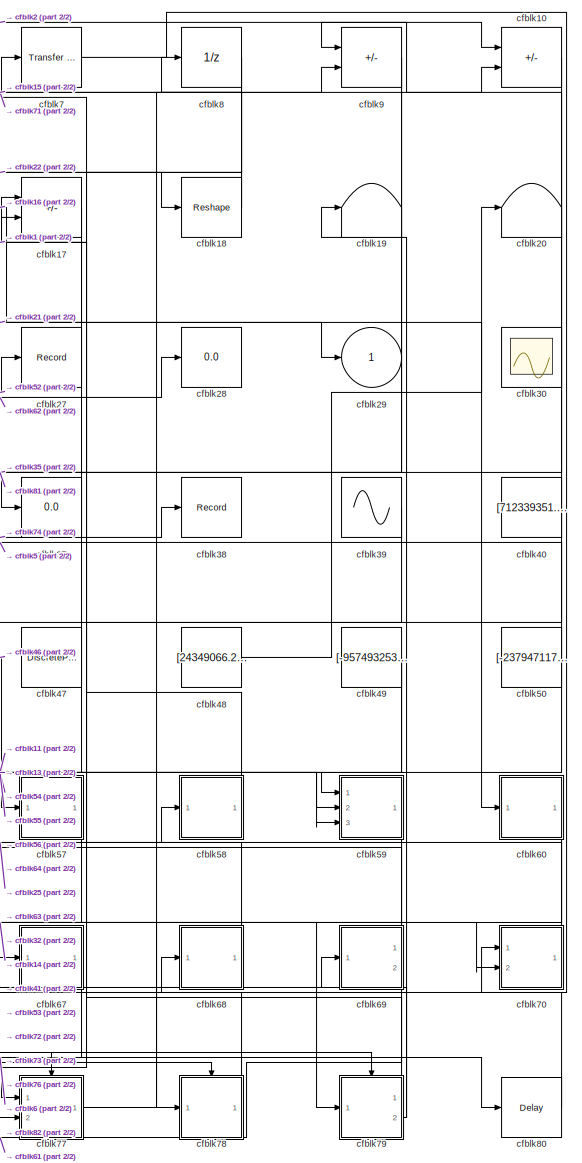
[diagram: root canvas - part 1/2, right side, full height]
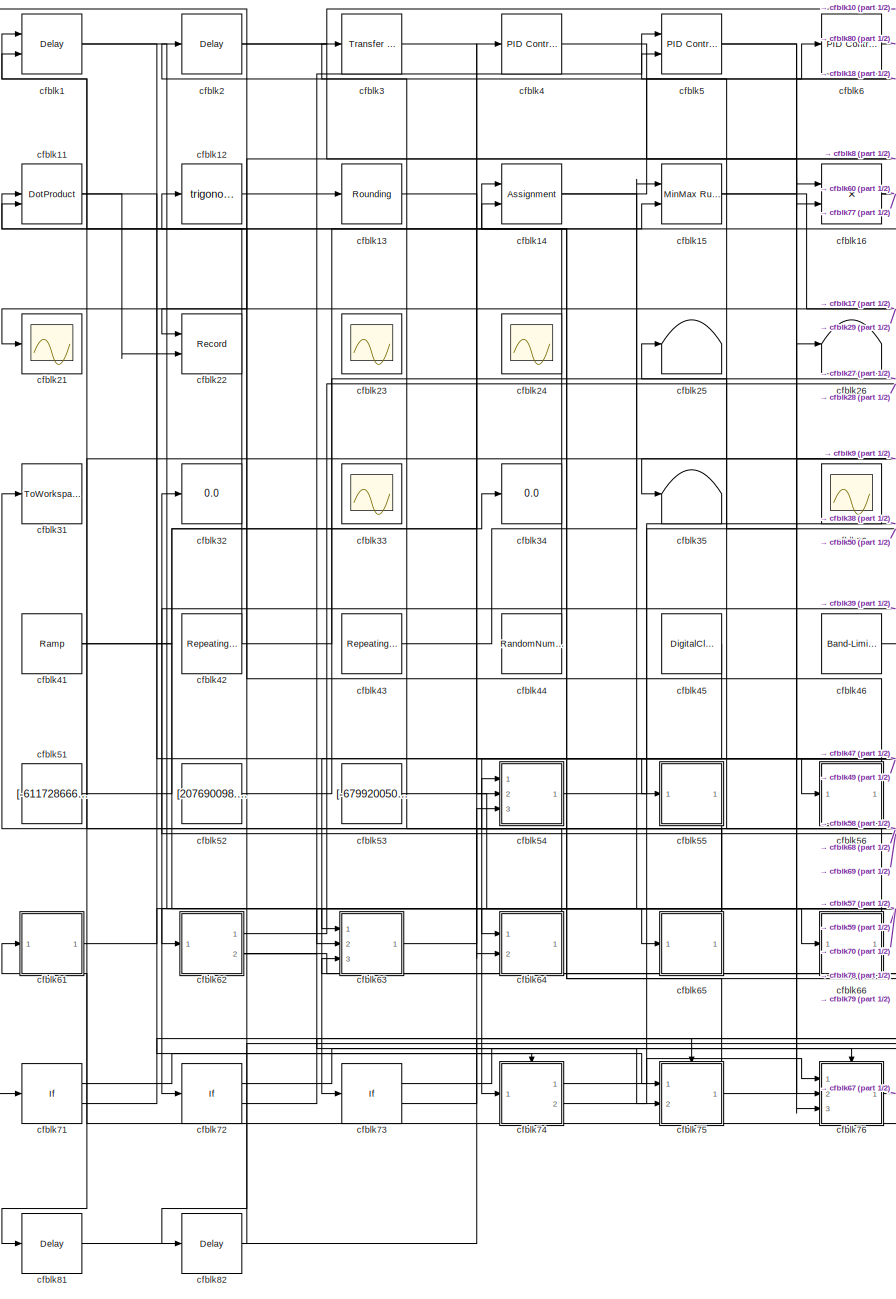
[diagram: root canvas - part 2/2, left side, full height]
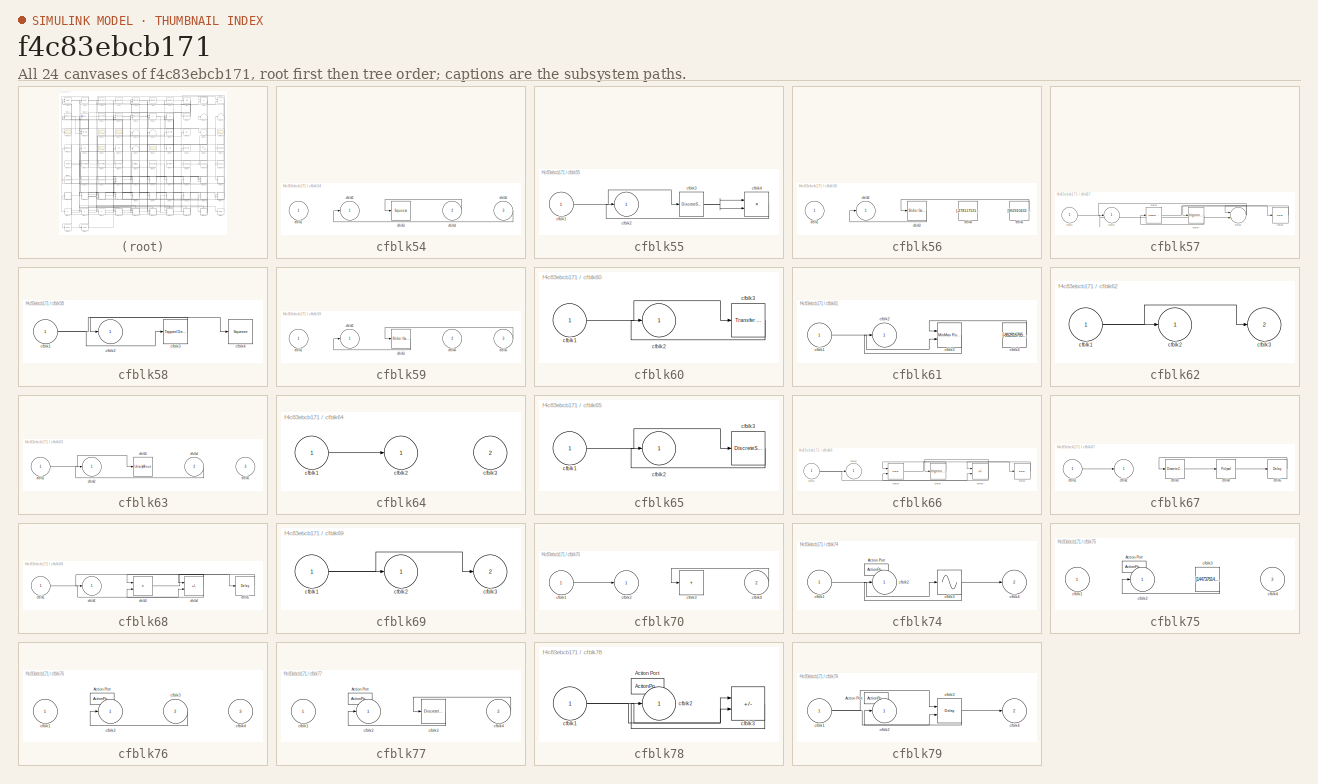
[diagram: thumbnail index - all 24 canvases of the model, root first then tree order]
MODEL slx_f4c83ebcb171
KIND model
CONFIG AbsTol = auto
CONFIG EnableMultiTasking = off
CONFIG FixedStep = auto
CONFIG MaxStep = auto
CONFIG MinStep = auto
CONFIG RelTol = 1e-3
CONFIG SampleTimeConstraint = Unconstrained
CONFIG SolverName = VariableStepAuto
CONFIG StartTime = 0.0
CONFIG StopTime = 10.0
BLOCK [Delay] cfblk1
  DelayLengthSource = Input port
  InputPortMap = u0,p1
  Ports = [2, 1]
  SampleTime = 1
BLOCK [Sum] cfblk10
  IconShape = rectangular
  Inputs = +-
  Ports = [2, 1]
BLOCK [DotProduct] cfblk11
  OutDataTypeStr = Inherit: Inherit via internal rule
BLOCK [Trigonometry] cfblk12
  Ports = [1, 1]
BLOCK [Rounding] cfblk13
BLOCK [Assignment] cfblk14
  DiagnosticForDimensions = Warning
  IndexOptions = Index vector (dialog)
  Indices = 1
  OutputSizes = 1
  Ports = [2, 1]
BLOCK [Reference] cfblk15  REF=simulink/Math
Operations/MinMax
Running
Resettable
  Ports = [2, 1]
  SourceBlock = simulink/Math\nOperations/MinMax\nRunning\nResettable
  SourceProductBaseCode = SL
  SourceType = MinMax Running Resettable
BLOCK [Product] cfblk16
  Inputs = **
  Ports = [2, 1]
BLOCK [Sum] cfblk17
  IconShape = rectangular
  Inputs = -+
  Ports = [2, 1]
BLOCK [Reshape] cfblk18
  Ports = [1, 1]
BLOCK [Terminator] cfblk19
BLOCK [Delay] cfblk2
  InputPortMap = u0
  Ports = [1, 1]
  SampleTime = 1
BLOCK [Terminator] cfblk20
BLOCK [Scope] cfblk21
  Floating = off
  NumInputPorts = 1
  Ports = [1]
BLOCK [Record] cfblk22
  CompatibilityTag = XY
  FileSettingsInternal = {"entries":[{"content":{"excelSettings":{"content":{},"type":"Streamout.ExcelSettings"}},"type":"Streamout.FileSettingStorage","uuid":"8e7bf4b3-18f9-4862-9ccf-1dfa97271c66"}],"packageUris":["http://schema.mathworks.com/mf0/streamout_blocks/R2020a"],"version":"1.0"}
  Layout = [1 1]
  Ports = [2]
  SignalsInternal = {"entries":[{"content":{"signals":[{"content":{"blockPath":["sampleModel251/cfblk22"],"channel":[],"dimensions":[1],"domain":"sampleModel251/cfblk22","lineColor":"#a2142f","plots":[1],"port":1,"sid":[""],"signalID":10225,"signalName":"cfblk8"},"type":"RecordBlkView.Signal","uuid":"a93a26aa-3780-4db6-8a25-d36d3070498f"},{"content":{"blockPath":["sampleModel251/cfblk22"],"channel":[],"dimensions":[1...<+384ch>
  VisualizationBindings = {"xyplotplugin":{"info":[{"series":[{"bindingParametersList":[{"parameter":"X-Axis","signalID":10225,"signalName":"cfblk8"},{"parameter":"Y-Axis","signalID":10229,"signalName":"cfblk11"}],"seriesID":58743}],"subplotID":1}]}}
BLOCK [Scope] cfblk23
  Floating = on
  NumInputPorts = 1
  Ports = []
BLOCK [Scope] cfblk24
  Floating = on
  NumInputPorts = 1
  Ports = []
BLOCK [Terminator] cfblk25
BLOCK [Terminator] cfblk26
BLOCK [Record] cfblk27
  FileSettingsInternal = {"entries":[{"content":{"excelSettings":{"content":{},"type":"Streamout.ExcelSettings"}},"type":"Streamout.FileSettingStorage","uuid":"0bcaab82-d6e6-46e2-b8f5-cdb28e049448"}],"packageUris":["http://schema.mathworks.com/mf0/streamout_blocks/R2020a"],"version":"1.0"}
  Ports = [1]
  SignalsInternal = {"entries":[{"content":{"signals":[{"content":{"blockPath":["sampleModel251/cfblk27"],"channel":[],"dimensions":[1],"domain":"sampleModel251/cfblk27","lineColor":"#139fff","plots":[1],"port":1,"sid":[""],"signalID":10237,"signalName":"cfblk52"},"type":"RecordBlkView.Signal","uuid":"654f11b6-cab6-4d53-a395-3cad523e40ad"}]},"type":"RecordBlkView.InputSignals","uuid":"2ed25575-0abf-43b2-af9e-3f7ebc84...<+98ch>
  VisualizationBindings = {"sparklinesplugin":{"info":[{"bindingParametersList":[],"subplotID":1}]}}
BLOCK [Display] cfblk28
  Decimation = 1
  Ports = [1]
BLOCK [Outport] cfblk29
BLOCK [Reference] cfblk3  REF=simulink/Discrete/Transfer Fcn
Lead or Lag
  Ports = [1, 1]
  SourceBlock = simulink/Discrete/Transfer Fcn\nLead or Lag
  SourceProductBaseCode = SL
  SourceType = Lead or Lag Compensator
BLOCK [Scope] cfblk30
  Floating = on
  NumInputPorts = 1
  Ports = []
BLOCK [ToWorkspace] cfblk31
  FixptAsFi = on
  MaxDataPoints = inf
  Ports = [1]
  SampleTime = -1
  SaveFormat = Timeseries
  VariableName = hcvumbk
BLOCK [Display] cfblk32
  Decimation = 1
  Ports = [1]
BLOCK [Scope] cfblk33
  Floating = on
  NumInputPorts = 1
  Ports = []
BLOCK [Display] cfblk34
  Decimation = 1
  Ports = [1]
BLOCK [Terminator] cfblk35
BLOCK [Scope] cfblk36
  Floating = on
  NumInputPorts = 1
  Ports = []
BLOCK [Display] cfblk37
  Decimation = 1
  Ports = [1]
BLOCK [Record] cfblk38
  FileSettingsInternal = {"entries":[{"content":{"excelSettings":{"content":{},"type":"Streamout.ExcelSettings"}},"type":"Streamout.FileSettingStorage","uuid":"450a57c3-339a-49a9-b2af-340a10de3a46"}],"packageUris":["http://schema.mathworks.com/mf0/streamout_blocks/R2020a"],"version":"1.0"}
  Ports = [1]
  SignalsInternal = {"entries":[{"content":{"signals":[{"content":{"blockPath":["sampleModel251/cfblk38"],"channel":[],"dimensions":[1],"domain":"sampleModel251/cfblk38","lineColor":"#a2142f","plots":[1],"port":1,"sid":[""],"signalID":10233,"signalName":"cfblk74:2"},"type":"RecordBlkView.Signal","uuid":"abc0ca75-750e-4e51-bdf1-e95b4b7f7b1b"}]},"type":"RecordBlkView.InputSignals","uuid":"fd922eba-63b2-4ccb-8c19-e2ea1d...<+100ch>
  VisualizationBindings = {"sparklinesplugin":{"info":[{"bindingParametersList":[],"subplotID":1}]}}
BLOCK [Sin] cfblk39
  Amplitude = [936032482.975931]
  Bias = [-18561550.447850]
  Ports = [0, 1]
  SampleTime = 0
BLOCK [Reference] cfblk4  REF=slpidlib/PID Controller
  Ports = [1, 1]
  SourceBlock = slpidlib/PID Controller
  SourceProductBaseCode = SL
  SourceType = PID 1dof
BLOCK [Constant] cfblk40
  SampleTime = 1
  Value = [712339351.117165]
BLOCK [Reference] cfblk41  REF=simulink/Sources/Ramp
  Ports = [0, 1]
  SourceBlock = simulink/Sources/Ramp
  SourceProductBaseCode = SL
  SourceType = Ramp
BLOCK [Reference] cfblk42  REF=simulink/Sources/Repeating
Sequence
Stair
  Ports = [0, 1]
  SourceBlock = simulink/Sources/Repeating\nSequence\nStair
  SourceProductBaseCode = SL
  SourceType = Repeating Sequence Stair
BLOCK [Reference] cfblk43  REF=simulink/Sources/Repeating
Sequence
Interpolated
  Ports = [0, 1]
  SourceBlock = simulink/Sources/Repeating\nSequence\nInterpolated
  SourceProductBaseCode = SL
  SourceType = Repeating Sequence Interpolated
BLOCK [RandomNumber] cfblk44
  Mean = [47565.909014]
  SampleTime = 0.1
  Seed = [812866171.000000]
  Variance = [575.168318]
BLOCK [DigitalClock] cfblk45
BLOCK [Reference] cfblk46  REF=simulink/Sources/Band-Limited
White Noise
  Ports = [0, 1]
  SourceBlock = simulink/Sources/Band-Limited\nWhite Noise
  SourceProductBaseCode = SL
  SourceType = Band-Limited White Noise.
BLOCK [DiscretePulseGenerator] cfblk47
  Amplitude = [-209501045.650854]
  Period = [61590001.005630]
  PhaseDelay = [9.000000]
  Ports = [0, 1]
  PulseType = Time based
  PulseWidth = 5
BLOCK [Constant] cfblk48
  SampleTime = 1
  Value = [24349066.242024]
BLOCK [Constant] cfblk49
  SampleTime = 1
  Value = [-957493253.142578]
BLOCK [Reference] cfblk5  REF=slpidlib/PID Controller (2DOF)
  Ports = [2, 1]
  SourceBlock = slpidlib/PID Controller (2DOF)
  SourceProductBaseCode = SL
  SourceType = PID 2dof
BLOCK [Constant] cfblk50
  SampleTime = 1
  Value = [-237947117.132452]
BLOCK [Constant] cfblk51
  SampleTime = 1
  Value = [-611728666.621138]
BLOCK [Constant] cfblk52
  SampleTime = 1
  Value = [207690098.393885]
BLOCK [Constant] cfblk53
  SampleTime = 1
  Value = [-679920050.740063]
BLOCK [SubSystem] cfblk54
  Ports = [3, 1]
  RequestExecContextInheritance = off
BLOCK [Inport] cfblk54/cfblk1
BLOCK [Outport] cfblk54/cfblk2
BLOCK [Squeeze] cfblk54/cfblk3
BLOCK [Inport] cfblk54/cfblk4
  Port = 2
BLOCK [Inport] cfblk54/cfblk5
  Port = 3
BLOCK [SubSystem] cfblk55
  Ports = [1, 1]
  RequestExecContextInheritance = off
BLOCK [Inport] cfblk55/cfblk1
BLOCK [Outport] cfblk55/cfblk2
BLOCK [DiscreteStateSpace] cfblk55/cfblk3
BLOCK [Product] cfblk55/cfblk4
  Inputs = **
  Ports = [2, 1]
BLOCK [SubSystem] cfblk56
  Ports = [1, 1]
  RequestExecContextInheritance = off
BLOCK [Inport] cfblk56/cfblk1
BLOCK [Outport] cfblk56/cfblk2
BLOCK [Reference] cfblk56/cfblk3  REF=simulink/Math
Operations/Slider
Gain
  Ports = [1, 1]
  SourceBlock = simulink/Math\nOperations/Slider\nGain
  SourceProductBaseCode = SL
  SourceType = Slider Gain
BLOCK [Constant] cfblk56/cfblk4
  SampleTime = 1
  Value = [-278117531.584112]
BLOCK [Constant] cfblk56/cfblk5
  SampleTime = 1
  Value = [962910432.324627]
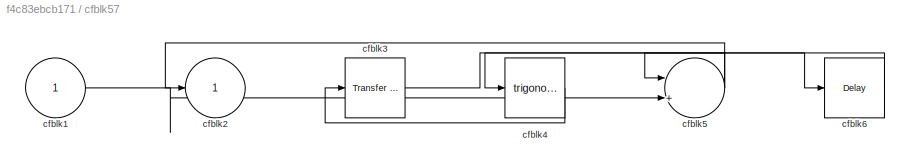
BLOCK [SubSystem] cfblk57
  Ports = [1, 1]
  RequestExecContextInheritance = off
BLOCK [Inport] cfblk57/cfblk1
BLOCK [Outport] cfblk57/cfblk2
BLOCK [Reference] cfblk57/cfblk3  REF=simulink/Discrete/Transfer Fcn
Real Zero
  Ports = [1, 1]
  SourceBlock = simulink/Discrete/Transfer Fcn\nReal Zero
  SourceProductBaseCode = SL
  SourceType = Transfer Fcn Real Zero
BLOCK [Trigonometry] cfblk57/cfblk4
  Ports = [1, 1]
BLOCK [Sum] cfblk57/cfblk5
  Inputs = |++
  Ports = [2, 1]
BLOCK [Delay] cfblk57/cfblk6
  InputPortMap = u0
  Ports = [1, 1]
  SampleTime = 1
BLOCK [SubSystem] cfblk58
  Ports = [1, 1]
  RequestExecContextInheritance = off
BLOCK [Inport] cfblk58/cfblk1
BLOCK [Outport] cfblk58/cfblk2
BLOCK [Reference] cfblk58/cfblk3  REF=simulink/Discrete/Tapped Delay
  Ports = [1, 1]
  SourceBlock = simulink/Discrete/Tapped Delay
  SourceProductBaseCode = SL
  SourceType = Tapped Delay Line
BLOCK [Squeeze] cfblk58/cfblk4
BLOCK [SubSystem] cfblk59
  Ports = [3, 1]
  RequestExecContextInheritance = off
BLOCK [Inport] cfblk59/cfblk1
BLOCK [Outport] cfblk59/cfblk2
BLOCK [Reference] cfblk59/cfblk3  REF=simulink/Math
Operations/Slider
Gain
  Ports = [1, 1]
  SourceBlock = simulink/Math\nOperations/Slider\nGain
  SourceProductBaseCode = SL
  SourceType = Slider Gain
BLOCK [Inport] cfblk59/cfblk4
  Port = 2
BLOCK [Inport] cfblk59/cfblk5
  Port = 3
BLOCK [Reference] cfblk6  REF=slpidlib/PID Controller
  Ports = [1, 1]
  SourceBlock = slpidlib/PID Controller
  SourceProductBaseCode = SL
  SourceType = PID 1dof
BLOCK [SubSystem] cfblk60
  Ports = [1, 1]
  RequestExecContextInheritance = off
BLOCK [Inport] cfblk60/cfblk1
BLOCK [Outport] cfblk60/cfblk2
BLOCK [Reference] cfblk60/cfblk3  REF=simulink/Discrete/Transfer Fcn
First Order
  Ports = [1, 1]
  SourceBlock = simulink/Discrete/Transfer Fcn\nFirst Order
  SourceProductBaseCode = SL
  SourceType = First Order Transfer Fcn
BLOCK [SubSystem] cfblk61
  Ports = [1, 1]
  RequestExecContextInheritance = off
BLOCK [Inport] cfblk61/cfblk1
BLOCK [Outport] cfblk61/cfblk2
BLOCK [Reference] cfblk61/cfblk3  REF=simulink/Math
Operations/MinMax
Running
Resettable
  Ports = [2, 1]
  SourceBlock = simulink/Math\nOperations/MinMax\nRunning\nResettable
  SourceProductBaseCode = SL
  SourceType = MinMax Running Resettable
BLOCK [Constant] cfblk61/cfblk4
  SampleTime = 1
  Value = [-862816765.075843]
BLOCK [SubSystem] cfblk62
  Ports = [1, 2]
  RequestExecContextInheritance = off
BLOCK [Inport] cfblk62/cfblk1
BLOCK [Outport] cfblk62/cfblk2
BLOCK [Outport] cfblk62/cfblk3
  Port = 2
BLOCK [SubSystem] cfblk63
  Ports = [3, 1]
  RequestExecContextInheritance = off
BLOCK [Inport] cfblk63/cfblk1
BLOCK [Outport] cfblk63/cfblk2
BLOCK [UnaryMinus] cfblk63/cfblk3
BLOCK [Inport] cfblk63/cfblk4
  Port = 2
BLOCK [Inport] cfblk63/cfblk5
  Port = 3
BLOCK [SubSystem] cfblk64
  Ports = [2, 1]
  RequestExecContextInheritance = off
BLOCK [Inport] cfblk64/cfblk1
BLOCK [Outport] cfblk64/cfblk2
BLOCK [Inport] cfblk64/cfblk3
  Port = 2
BLOCK [SubSystem] cfblk65
  Ports = [1, 1]
  RequestExecContextInheritance = off
BLOCK [Inport] cfblk65/cfblk1
BLOCK [Outport] cfblk65/cfblk2
BLOCK [DiscreteStateSpace] cfblk65/cfblk3
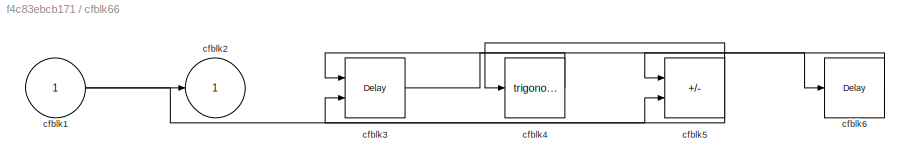
BLOCK [SubSystem] cfblk66
  Ports = [1, 1]
  RequestExecContextInheritance = off
BLOCK [Inport] cfblk66/cfblk1
BLOCK [Outport] cfblk66/cfblk2
BLOCK [Delay] cfblk66/cfblk3
  DelayLengthSource = Input port
  InputPortMap = u0,p1
  Ports = [2, 1]
  SampleTime = 1
BLOCK [Trigonometry] cfblk66/cfblk4
  Ports = [1, 1]
BLOCK [Sum] cfblk66/cfblk5
  IconShape = rectangular
  Inputs = --
  Ports = [2, 1]
BLOCK [Delay] cfblk66/cfblk6
  InputPortMap = u0
  Ports = [1, 1]
  SampleTime = 1
BLOCK [SubSystem] cfblk67
  Ports = [1, 1]
  RequestExecContextInheritance = off
BLOCK [Inport] cfblk67/cfblk1
BLOCK [Outport] cfblk67/cfblk2
BLOCK [DiscreteZeroPole] cfblk67/cfblk3
  Gain = 1
  Poles = [0 0.5]
BLOCK [Polyval] cfblk67/cfblk4
  Coefs = [ +2.081618890e-019, -1.441693666e-014, +4.719686976e-010, -8.536869453e-006, +1.621573104e-001, -8.087801117e+001 ]
BLOCK [Delay] cfblk67/cfblk5
  InputPortMap = u0
  Ports = [1, 1]
  SampleTime = 1
BLOCK [SubSystem] cfblk68
  Ports = [1, 1]
  RequestExecContextInheritance = off
BLOCK [Inport] cfblk68/cfblk1
BLOCK [Outport] cfblk68/cfblk2
BLOCK [Product] cfblk68/cfblk3
  Inputs = **
  Ports = [2, 1]
BLOCK [Sum] cfblk68/cfblk4
  IconShape = rectangular
  Inputs = +-
  Ports = [2, 1]
BLOCK [Delay] cfblk68/cfblk5
  InputPortMap = u0
  Ports = [1, 1]
  SampleTime = 1
BLOCK [SubSystem] cfblk69
  Ports = [1, 2]
  RequestExecContextInheritance = off
BLOCK [Inport] cfblk69/cfblk1
BLOCK [Outport] cfblk69/cfblk2
BLOCK [Outport] cfblk69/cfblk3
  Port = 2
BLOCK [Reference] cfblk7  REF=simulink/Discrete/Transfer Fcn
Real Zero
  Ports = [1, 1]
  SourceBlock = simulink/Discrete/Transfer Fcn\nReal Zero
  SourceProductBaseCode = SL
  SourceType = Transfer Fcn Real Zero
BLOCK [SubSystem] cfblk70
  Ports = [2, 1]
  RequestExecContextInheritance = off
BLOCK [Inport] cfblk70/cfblk1
BLOCK [Outport] cfblk70/cfblk2
BLOCK [Sum] cfblk70/cfblk3
  IconShape = rectangular
  Inputs = +
  Ports = [1, 1]
BLOCK [Inport] cfblk70/cfblk4
  Port = 2
BLOCK [If] cfblk71
  IfExpression = u1 >= 0
  Ports = [1, 2]
  SampleTime = 1
BLOCK [If] cfblk72
  IfExpression = u1 >= 0
  Ports = [1, 2]
  SampleTime = 1
BLOCK [If] cfblk73
  IfExpression = u1 >= 0
  Ports = [1, 2]
  SampleTime = 1
BLOCK [SubSystem] cfblk74
  Ports = [1, 2, 0, 0, 0, 0, 0, 1]
  RequestExecContextInheritance = off
  TreatAsAtomicUnit = on
BLOCK [ActionPort] cfblk74/Action Port
  ActionPortLabel = if(u1 >= 0)
BLOCK [Inport] cfblk74/cfblk1
BLOCK [Outport] cfblk74/cfblk2
BLOCK [Sin] cfblk74/cfblk3
  Ports = [1, 1]
  SampleTime = 0
  TimeSource = Use external signal
BLOCK [Outport] cfblk74/cfblk4
  Port = 2
BLOCK [SubSystem] cfblk75
  Ports = [2, 1, 0, 0, 0, 0, 0, 1]
  RequestExecContextInheritance = off
  TreatAsAtomicUnit = on
BLOCK [ActionPort] cfblk75/Action Port
  ActionPortLabel = else
BLOCK [Inport] cfblk75/cfblk1
BLOCK [Outport] cfblk75/cfblk2
BLOCK [Constant] cfblk75/cfblk3
  SampleTime = 1
  Value = [144737614.094891]
BLOCK [Inport] cfblk75/cfblk4
  Port = 2
BLOCK [SubSystem] cfblk76
  Ports = [3, 1, 0, 0, 0, 0, 0, 1]
  RequestExecContextInheritance = off
  TreatAsAtomicUnit = on
BLOCK [ActionPort] cfblk76/Action Port
  ActionPortLabel = if(u1 >= 0)
BLOCK [Inport] cfblk76/cfblk1
BLOCK [Outport] cfblk76/cfblk2
BLOCK [Inport] cfblk76/cfblk3
  Port = 2
BLOCK [Inport] cfblk76/cfblk4
  Port = 3
BLOCK [SubSystem] cfblk77
  Ports = [2, 1, 0, 0, 0, 0, 0, 1]
  RequestExecContextInheritance = off
  TreatAsAtomicUnit = on
BLOCK [ActionPort] cfblk77/Action Port
  ActionPortLabel = else
BLOCK [Inport] cfblk77/cfblk1
BLOCK [Outport] cfblk77/cfblk2
BLOCK [DiscreteIntegrator] cfblk77/cfblk3
  ICPrevOutput = DiscIntNeverNeededParam
  ICPrevScaledInput = DiscIntNeverNeededParam
  InitialConditionSetting = Auto
  Ports = [1, 1]
  SampleTime = -1
BLOCK [Inport] cfblk77/cfblk4
  Port = 2
BLOCK [SubSystem] cfblk78
  Ports = [1, 1, 0, 0, 0, 0, 0, 1]
  RequestExecContextInheritance = off
  TreatAsAtomicUnit = on
BLOCK [ActionPort] cfblk78/Action Port
  ActionPortLabel = if(u1 >= 0)
BLOCK [Inport] cfblk78/cfblk1
BLOCK [Outport] cfblk78/cfblk2
BLOCK [Sum] cfblk78/cfblk3
  IconShape = rectangular
  Inputs = --
  Ports = [2, 1]
BLOCK [SubSystem] cfblk79
  Ports = [1, 2, 0, 0, 0, 0, 0, 1]
  RequestExecContextInheritance = off
  TreatAsAtomicUnit = on
BLOCK [ActionPort] cfblk79/Action Port
  ActionPortLabel = else
BLOCK [Inport] cfblk79/cfblk1
BLOCK [Outport] cfblk79/cfblk2
BLOCK [Delay] cfblk79/cfblk3
  InputPortMap = u0,e6
  Ports = [2, 1]
  ShowEnablePort = on
BLOCK [Outport] cfblk79/cfblk4
  Port = 2
BLOCK [UnitDelay] cfblk8
  HasFrameUpgradeWarning = on
BLOCK [Delay] cfblk80
  InputPortMap = u0
  Ports = [1, 1]
  SampleTime = 1
BLOCK [Delay] cfblk81
  InputPortMap = u0
  Ports = [1, 1]
  SampleTime = 1
BLOCK [Delay] cfblk82
  InputPortMap = u0
  Ports = [1, 1]
  SampleTime = 1
BLOCK [Sum] cfblk9
  IconShape = rectangular
  Inputs = +-
  Ports = [2, 1]
LINE cfblk10:1 -> cfblk76:3
NET cfblk11:1 -> cfblk22:2, cfblk59:1
LINE cfblk12:1 -> cfblk13:1
LINE cfblk13:1 -> cfblk59:2
NET cfblk14:1 -> cfblk6:1, cfblk70:2
NET cfblk15:1 -> cfblk10:2, cfblk29:1
NET cfblk16:1 -> cfblk60:1, cfblk77:2
LINE cfblk17:1 -> cfblk21:1
NET cfblk18:1 -> cfblk71:1, cfblk8:1
NET cfblk1:1 -> cfblk66:1, cfblk75:1
NET cfblk2:1 -> cfblk10:1, cfblk18:1
LINE cfblk39:1 -> cfblk62:1
LINE cfblk3:1 -> cfblk64:2
NET cfblk40:1 -> cfblk77:1, cfblk9:1
NET cfblk41:1 -> cfblk4:1, cfblk79:1
NET cfblk42:1 -> cfblk15:2, cfblk1:2
LINE cfblk43:1 -> cfblk15:1
LINE cfblk44:1 -> cfblk11:2
LINE cfblk45:1 -> cfblk63:1
LINE cfblk46:1 -> cfblk57:1
NET cfblk47:1 -> cfblk1:1, cfblk55:1
LINE cfblk48:1 -> cfblk20:1
NET cfblk49:1 -> cfblk54:2, cfblk64:1
LINE cfblk4:1 -> cfblk16:2
NET cfblk50:1 -> cfblk56:1, cfblk5:2
LINE cfblk51:1 -> cfblk34:1
LINE cfblk52:1 -> cfblk27:1
LINE cfblk53:1 -> cfblk78:1
LINE cfblk54/cfblk4:1 -> cfblk54/cfblk3:1
LINE cfblk54/cfblk5:1 -> cfblk54/cfblk2:1
LINE cfblk54:1 -> cfblk16:1
LINE cfblk55/cfblk1:1 -> cfblk55/cfblk3:1
NET cfblk55/cfblk3:1 -> cfblk55/cfblk4:1, cfblk55/cfblk4:2
LINE cfblk55/cfblk4:1 -> cfblk55/cfblk2:1
LINE cfblk55:1 -> cfblk74:1
LINE cfblk56/cfblk3:1 -> cfblk56/cfblk2:1
LINE cfblk56/cfblk5:1 -> cfblk56/cfblk3:1
LINE cfblk56:1 -> cfblk12:1
LINE cfblk57/cfblk1:1 -> cfblk57/cfblk5:2
LINE cfblk57/cfblk3:1 -> cfblk57/cfblk6:1
LINE cfblk57/cfblk4:1 -> cfblk57/cfblk3:1
NET cfblk57/cfblk5:1 -> cfblk57/cfblk2:1, cfblk57/cfblk4:1
LINE cfblk57/cfblk6:1 -> cfblk57/cfblk5:1
LINE cfblk57:1 -> cfblk73:1
NET cfblk58/cfblk1:1 -> cfblk58/cfblk3:1, cfblk58/cfblk4:1
LINE cfblk58/cfblk3:1 -> cfblk58/cfblk2:1
LINE cfblk58:1 -> cfblk17:1
LINE cfblk59/cfblk3:1 -> cfblk59/cfblk2:1
LINE cfblk59/cfblk5:1 -> cfblk59/cfblk3:1
LINE cfblk59:1 -> cfblk72:1
NET cfblk5:1 -> cfblk59:3, cfblk76:2
LINE cfblk60/cfblk1:1 -> cfblk60/cfblk3:1
LINE cfblk60/cfblk3:1 -> cfblk60/cfblk2:1
LINE cfblk60:1 -> cfblk63:2
LINE cfblk61/cfblk1:1 -> cfblk61/cfblk3:2
LINE cfblk61/cfblk3:1 -> cfblk61/cfblk2:1
LINE cfblk61/cfblk4:1 -> cfblk61/cfblk3:1
LINE cfblk61:1 -> cfblk65:1
NET cfblk62/cfblk1:1 -> cfblk62/cfblk2:1, cfblk62/cfblk3:1
LINE cfblk62:1 -> cfblk28:1
NET cfblk62:2 -> cfblk5:1, cfblk69:1, cfblk75:2
LINE cfblk63/cfblk1:1 -> cfblk63/cfblk3:1
LINE cfblk63/cfblk4:1 -> cfblk63/cfblk2:1
LINE cfblk63:1 -> cfblk58:1
LINE cfblk64/cfblk1:1 -> cfblk64/cfblk2:1
LINE cfblk64:1 -> cfblk31:1
LINE cfblk65/cfblk1:1 -> cfblk65/cfblk3:1
LINE cfblk65/cfblk3:1 -> cfblk65/cfblk2:1
NET cfblk65:1 -> cfblk11:1, cfblk3:1
NET cfblk66/cfblk1:1 -> cfblk66/cfblk2:1, cfblk66/cfblk5:2
LINE cfblk66/cfblk3:1 -> cfblk66/cfblk6:1
LINE cfblk66/cfblk4:1 -> cfblk66/cfblk3:1
NET cfblk66/cfblk5:1 -> cfblk66/cfblk3:2, cfblk66/cfblk4:1
LINE cfblk66/cfblk6:1 -> cfblk66/cfblk5:1
LINE cfblk66:1 -> cfblk14:1
LINE cfblk67/cfblk1:1 -> cfblk67/cfblk2:1
LINE cfblk67/cfblk3:1 -> cfblk67/cfblk4:1
LINE cfblk67/cfblk4:1 -> cfblk67/cfblk5:1
LINE cfblk67/cfblk5:1 -> cfblk67/cfblk3:1
LINE cfblk67:1 -> cfblk82:1
LINE cfblk68/cfblk1:1 -> cfblk68/cfblk4:2
LINE cfblk68/cfblk3:1 -> cfblk68/cfblk5:1
NET cfblk68/cfblk4:1 -> cfblk68/cfblk2:1, cfblk68/cfblk3:1, cfblk68/cfblk3:2
LINE cfblk68/cfblk5:1 -> cfblk68/cfblk4:1
LINE cfblk68:1 -> cfblk25:1
NET cfblk69/cfblk1:1 -> cfblk69/cfblk2:1, cfblk69/cfblk3:1
LINE cfblk69:1 -> cfblk32:1
LINE cfblk69:2 -> cfblk61:1
LINE cfblk6:1 -> cfblk80:1
LINE cfblk70/cfblk1:1 -> cfblk70/cfblk2:1
LINE cfblk70/cfblk4:1 -> cfblk70/cfblk3:1
LINE cfblk70:1 -> cfblk17:2
LINE cfblk71:1 -> cfblk74:ifaction
LINE cfblk71:2 -> cfblk75:ifaction
LINE cfblk72:1 -> cfblk76:ifaction
LINE cfblk72:2 -> cfblk77:ifaction
LINE cfblk73:1 -> cfblk78:ifaction
LINE cfblk73:2 -> cfblk79:ifaction
LINE cfblk74/cfblk1:1 -> cfblk74/cfblk3:1
NET cfblk74/cfblk3:1 -> cfblk74/cfblk2:1, cfblk74/cfblk4:1
LINE cfblk74:1 -> cfblk76:1
LINE cfblk74:2 -> cfblk38:1
LINE cfblk75/cfblk3:1 -> cfblk75/cfblk2:1
NET cfblk75:1 -> cfblk26:1, cfblk54:1
LINE cfblk76/cfblk3:1 -> cfblk76/cfblk2:1
LINE cfblk76:1 -> cfblk67:1
LINE cfblk77/cfblk3:1 -> cfblk77/cfblk2:1
LINE cfblk77/cfblk4:1 -> cfblk77/cfblk3:1
LINE cfblk77:1 -> cfblk9:2
NET cfblk78/cfblk1:1 -> cfblk78/cfblk3:1, cfblk78/cfblk3:2
LINE cfblk78/cfblk3:1 -> cfblk78/cfblk2:1
LINE cfblk78:1 -> cfblk68:1
NET cfblk79/cfblk1:1 -> cfblk79/cfblk3:1, cfblk79/cfblk3:2
NET cfblk79/cfblk3:1 -> cfblk79/cfblk2:1, cfblk79/cfblk4:1
LINE cfblk79:1 -> cfblk7:1
NET cfblk79:2 -> cfblk19:1, cfblk63:3
LINE cfblk7:1 -> cfblk70:1
LINE cfblk80:1 -> cfblk14:2
LINE cfblk81:1 -> cfblk54:3
LINE cfblk82:1 -> cfblk2:1
NET cfblk8:1 -> cfblk22:1, cfblk37:1
NET cfblk9:1 -> cfblk35:1, cfblk81:1
note: NET lines group one-source signal fan-out (src -> all destinations, sorted); 1:1 wires keep LINE
